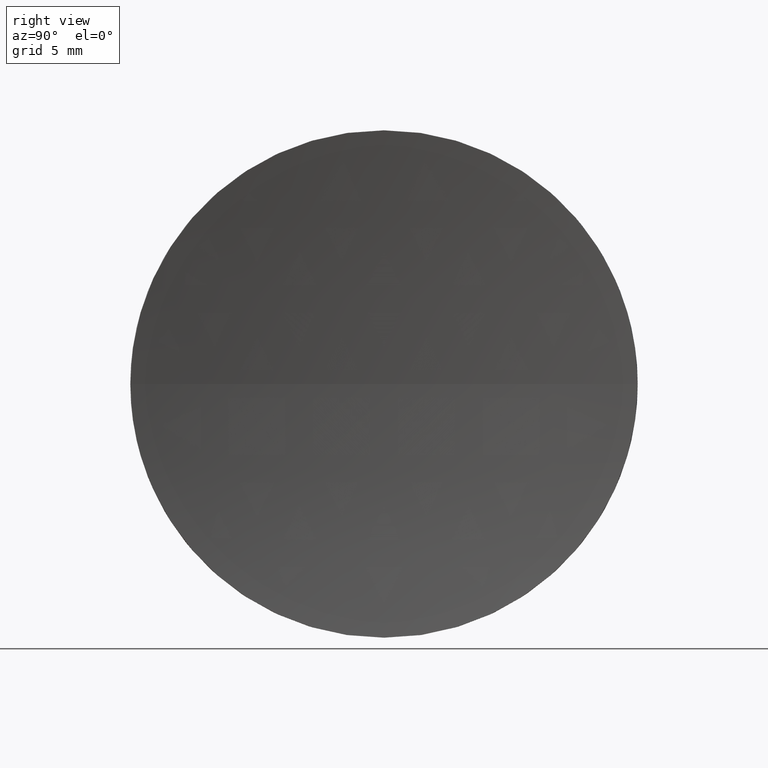
[diagram: clean part render]
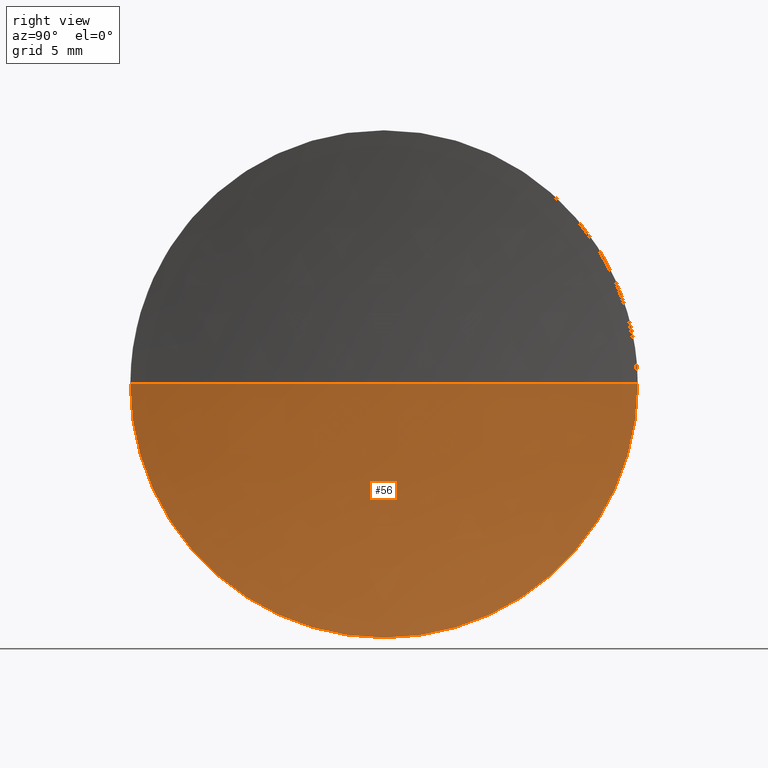
[diagram: same view with one face highlighted and labeled with its STEP entity id]
A machine part, right view. The second image highlights one B-rep face of the part: STEP entity #56.
In plain terms, the highlighted spherical surface has radius 80 mm.
Its self-contained STEP definition (entity closure, byte-faithful):
#6 = CARTESIAN_POINT ( 'NONE',  ( 122.0752660772947000, 81.87802112337247700, 1.530808498934193900E-015 ) ) ;
#13 = CIRCLE ( 'NONE', #166, 12.50000000000002500 ) ;
#17 = EDGE_CURVE ( 'NONE', #83, #74, #54, .T. ) ;
#18 = DIRECTION ( 'NONE',  ( 0.0000000000000000000, 0.0000000000000000000, 1.000000000000000000 ) ) ;
#19 = DIRECTION ( 'NONE',  ( -1.000000000000000000, -0.0000000000000000000, -0.0000000000000000000 ) ) ;
#20 = EDGE_CURVE ( 'NONE', #182, #74, #51, .T. ) ;
#21 = CARTESIAN_POINT ( 'NONE',  ( 122.0752660772947000, 69.37802112337243400, 0.0000000000000000000 ) ) ;
#27 = AXIS2_PLACEMENT_3D ( 'NONE', #128, #145, #117 ) ;
#29 = AXIS2_PLACEMENT_3D ( 'NONE', #48, #144, #67 ) ;
#30 = EDGE_LOOP ( 'NONE', ( #155, #142, #124, #112 ) ) ;
#35 = CARTESIAN_POINT ( 'NONE',  ( 122.0752660772947000, 69.37802112337243400, 0.0000000000000000000 ) ) ;
#38 = EDGE_CURVE ( 'NONE', #182, #86, #13, .T. ) ;
#48 = CARTESIAN_POINT ( 'NONE',  ( 201.0926692236902200, 69.37802112337246300, 0.0000000000000000000 ) ) ;
#49 = AXIS2_PLACEMENT_3D ( 'NONE', #125, #84, #176 ) ;
#51 = CIRCLE ( 'NONE', #29, 80.00000000000000000 ) ;
#54 = CIRCLE ( 'NONE', #49, 80.00000000000000000 ) ;
#56 = ADVANCED_FACE ( 'NONE', ( #118 ), #90, .F. ) ;
#60 = CARTESIAN_POINT ( 'NONE',  ( 122.0752660772947000, 69.37802112337243400, -12.50000000000002500 ) ) ;
#65 = DIRECTION ( 'NONE',  ( 0.0000000000000000000, 0.0000000000000000000, 1.000000000000000000 ) ) ;
#67 = DIRECTION ( 'NONE',  ( 0.0000000000000000000, -1.000000000000000000, -1.224646799147353200E-016 ) ) ;
#71 = AXIS2_PLACEMENT_3D ( 'NONE', #35, #103, #65 ) ;
#74 = VERTEX_POINT ( 'NONE', #127 ) ;
#77 = CIRCLE ( 'NONE', #71, 12.50000000000002500 ) ;
#83 = VERTEX_POINT ( 'NONE', #179 ) ;
#84 = DIRECTION ( 'NONE',  ( 0.0000000000000000000, 0.0000000000000000000, -1.000000000000000000 ) ) ;
#86 = VERTEX_POINT ( 'NONE', #60 ) ;
#90 = SPHERICAL_SURFACE ( 'NONE', #27, 80.00000000000000000 ) ;
#103 = DIRECTION ( 'NONE',  ( -1.000000000000000000, -0.0000000000000000000, -0.0000000000000000000 ) ) ;
#112 = ORIENTED_EDGE ( 'NONE', *, *, #160, .F. ) ;
#117 = DIRECTION ( 'NONE',  ( 0.0000000000000000000, -1.000000000000000000, 0.0000000000000000000 ) ) ;
#118 = FACE_OUTER_BOUND ( 'NONE', #30, .T. ) ;
#124 = ORIENTED_EDGE ( 'NONE', *, *, #17, .F. ) ;
#125 = CARTESIAN_POINT ( 'NONE',  ( 201.0926692236902200, 69.37802112337246300, 0.0000000000000000000 ) ) ;
#127 = CARTESIAN_POINT ( 'NONE',  ( 121.0926692236902400, 69.37802112337246300, 0.0000000000000000000 ) ) ;
#128 = CARTESIAN_POINT ( 'NONE',  ( 201.0926692236902200, 69.37802112337246300, 0.0000000000000000000 ) ) ;
#142 = ORIENTED_EDGE ( 'NONE', *, *, #20, .T. ) ;
#144 = DIRECTION ( 'NONE',  ( 0.0000000000000000000, -1.224646799147353200E-016, 1.000000000000000000 ) ) ;
#145 = DIRECTION ( 'NONE',  ( 0.0000000000000000000, 0.0000000000000000000, 1.000000000000000000 ) ) ;
#155 = ORIENTED_EDGE ( 'NONE', *, *, #38, .F. ) ;
#160 = EDGE_CURVE ( 'NONE', #86, #83, #77, .T. ) ;
#166 = AXIS2_PLACEMENT_3D ( 'NONE', #21, #19, #18 ) ;
#176 = DIRECTION ( 'NONE',  ( -1.000000000000000000, 0.0000000000000000000, 0.0000000000000000000 ) ) ;
#179 = CARTESIAN_POINT ( 'NONE',  ( 122.0752660772947000, 56.87802112337242000, 0.0000000000000000000 ) ) ;
#182 = VERTEX_POINT ( 'NONE', #6 ) ;